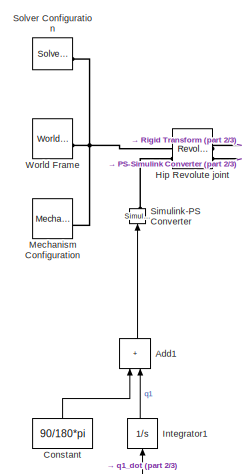
[diagram: root canvas - part 1/3, top left region]
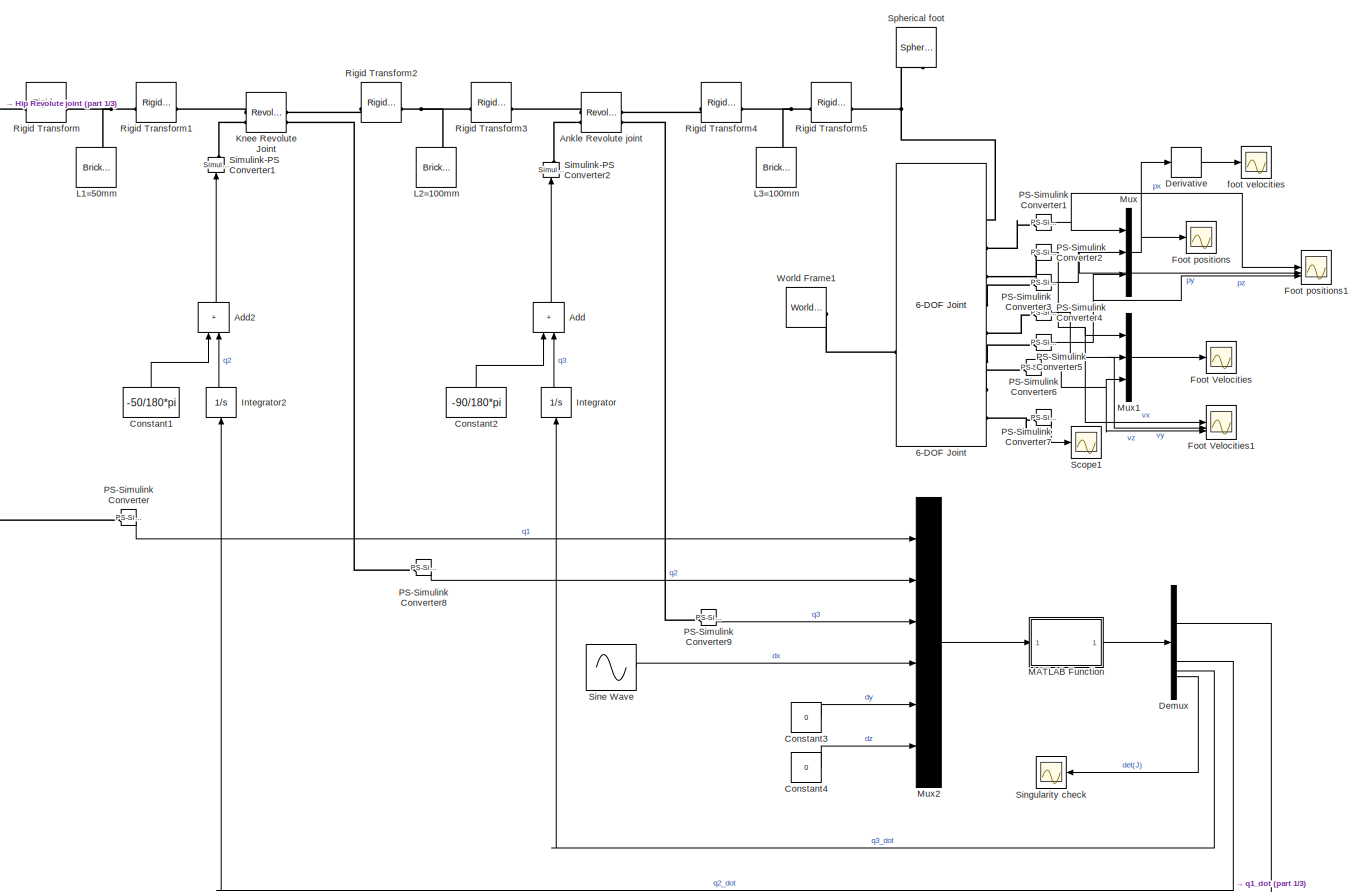
[diagram: root canvas - part 2/3, most of the canvas]
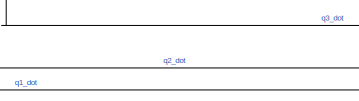
[diagram: root canvas - part 3/3, bottom center region]
MODEL slx_8868ec601e04
KIND model
CONFIG AbsTol = 1e-3
CONFIG EnableMultiTasking = on
CONFIG FixedStep = auto
CONFIG MaxStep = auto
CONFIG MinStep = auto
CONFIG RelTol = 1e-3
CONFIG SampleTimeConstraint = Unconstrained
CONFIG SolverName = VariableStepAuto
CONFIG StartTime = 0.0
CONFIG StopTime = 20.0
BLOCK [Reference] 6-DOF Joint  REF=sm_lib/Joints/6-DOF Joint
  SourceBlock = sm_lib/Joints/6-DOF Joint
  SourceType = 6-DOF Joint
BLOCK [Sum] Add
  IconShape = rectangular
  NameLocation = right
BLOCK [Sum] Add1
  IconShape = rectangular
  NameLocation = right
BLOCK [Sum] Add2
  IconShape = rectangular
  NameLocation = right
BLOCK [Reference] Ankle Revolute joint  REF=sm_lib/Joints/Revolute Joint
  NameLocation = top
  SourceBlock = sm_lib/Joints/Revolute Joint
  SourceType = Revolute Joint
BLOCK [Constant] Constant
  NameLocation = right
  Value = 90/180*pi
BLOCK [Constant] Constant1
  NameLocation = right
  Value = -50/180*pi
BLOCK [Constant] Constant2
  NameLocation = right
  Value = -90/180*pi
BLOCK [Constant] Constant3
  Value = 0
BLOCK [Constant] Constant4
  Value = 0
BLOCK [Demux] Demux
BLOCK [Derivative] Derivative
BLOCK [Scope] Foot Velocities
  Floating = off
  NameLocation = top
  NumInputPorts = 1
  ScopeSpecificationString = Simulink.scopes.TimeScopeBlockCfg('CurrentConfiguration', extmgr.ConfigurationSet(extmgr.Configuration('Core','General UI',true,'FigureColor',[1 1 1]),extmgr.Configuration('Core','Source UI',true),extmgr.Configuration('Sources','WiredSimulink',true,'DataLoggingVariableName','ScopeData3'),extmgr.Configuration('Visuals','Time Domain',true,'SerializedDisplays',{struct('MinYLimReal','-0.0875','MaxYLim...<+1826ch>
BLOCK [Scope] Foot Velocities1
  Floating = off
  NameLocation = top
  NumInputPorts = 3
  ScopeSpecificationString = Simulink.scopes.TimeScopeBlockCfg('CurrentConfiguration', extmgr.ConfigurationSet(extmgr.Configuration('Core','General UI',true,'FigureColor',[1 1 1]),extmgr.Configuration('Core','Source UI',true),extmgr.Configuration('Sources','WiredSimulink',true,'DataLoggingVariableName','ScopeData3'),extmgr.Configuration('Visuals','Time Domain',true,'SerializedDisplays',{struct('MinYLimReal','-0.0875','MaxYLim...<+3353ch>
BLOCK [Scope] Foot positions
  Floating = off
  NameLocation = top
  NumInputPorts = 1
  ScopeSpecificationString = Simulink.scopes.TimeScopeBlockCfg('CurrentConfiguration', extmgr.ConfigurationSet(extmgr.Configuration('Core','General UI',true),extmgr.Configuration('Core','Source UI',true),extmgr.Configuration('Sources','WiredSimulink',true,'DataLoggingVariableName','ScopeData2'),extmgr.Configuration('Visuals','Time Domain',true,'SerializedDisplays',{struct('MinYLimReal','-0.17603','MaxYLimReal','0.17546','YLab...<+1598ch>
BLOCK [Scope] Foot positions1
  Floating = off
  NameLocation = top
  NumInputPorts = 3
  ScopeSpecificationString = Simulink.scopes.TimeScopeBlockCfg('CurrentConfiguration', extmgr.ConfigurationSet(extmgr.Configuration('Core','General UI',true,'FigureColor',[1 1 1]),extmgr.Configuration('Core','Source UI',true),extmgr.Configuration('Sources','WiredSimulink',true,'DataLoggingVariableName','ScopeData2'),extmgr.Configuration('Visuals','Time Domain',true,'SerializedDisplays',{struct('MinYLimReal','-0.01754','MaxYLi...<+3222ch>
BLOCK [Reference] Hip Revolute joint  REF=sm_lib/Joints/Revolute Joint
  NameLocation = top
  SourceBlock = sm_lib/Joints/Revolute Joint
  SourceType = Revolute Joint
BLOCK [Integrator] Integrator
  NameLocation = right
BLOCK [Integrator] Integrator1
  NameLocation = right
BLOCK [Integrator] Integrator2
  NameLocation = right
BLOCK [Reference] Knee Revolute Joint  REF=sm_lib/Joints/Revolute Joint
  NameLocation = top
  SourceBlock = sm_lib/Joints/Revolute Joint
  SourceType = Revolute Joint
BLOCK [Reference] L1=50mm  REF=sm_lib/Body Elements/Brick Solid
  SourceBlock = sm_lib/Body Elements/Brick Solid
  SourceType = Brick Solid
BLOCK [Reference] L2=100mm  REF=sm_lib/Body Elements/Brick Solid
  SourceBlock = sm_lib/Body Elements/Brick Solid
  SourceType = Brick Solid
BLOCK [Reference] L3=100mm  REF=sm_lib/Body Elements/Brick Solid
  SourceBlock = sm_lib/Body Elements/Brick Solid
  SourceType = Brick Solid
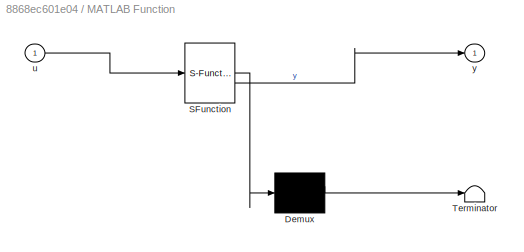
BLOCK [SubSystem] MATLAB Function
  ErrorFcn = Stateflow.Translate.translate
  PermitHierarchicalResolution = ExplicitOnly
  SFBlockType = MATLAB Function
  TreatAsAtomicUnit = on
BLOCK [Demux] MATLAB Function/ Demux 
  Outputs = 1
BLOCK [S-Function] MATLAB Function/ SFunction 
  EnableBusSupport = on
  FunctionName = sf_sfun
  PortCounts = [1 2]
  SFcnIsStateOwnerBlock = off
  SFunctionDeploymentMode = off
  Tag = Stateflow S-Function 2
BLOCK [Terminator] MATLAB Function/ Terminator 
BLOCK [Inport] MATLAB Function/u
BLOCK [Outport] MATLAB Function/y
BLOCK [Reference] Mechanism Configuration  REF=sm_lib/Utilities/Mechanism
Configuration
  SourceBlock = sm_lib/Utilities/Mechanism\nConfiguration
  SourceType = Mechanism\nConfiguration
BLOCK [Mux] Mux
  DisplayOption = bar
  Inputs = 3
BLOCK [Mux] Mux1
  DisplayOption = bar
  Inputs = 3
BLOCK [Mux] Mux2
  DisplayOption = bar
  Inputs = 6
BLOCK [Reference] PS-Simulink Converter  REF=nesl_utility/PS-Simulink
Converter
  SourceBlock = nesl_utility/PS-Simulink\nConverter
  SourceType = PS-Simulink\nConverter
BLOCK [Reference] PS-Simulink Converter1  REF=nesl_utility/PS-Simulink
Converter
  SourceBlock = nesl_utility/PS-Simulink\nConverter
  SourceType = PS-Simulink\nConverter
BLOCK [Reference] PS-Simulink Converter2  REF=nesl_utility/PS-Simulink
Converter
  SourceBlock = nesl_utility/PS-Simulink\nConverter
  SourceType = PS-Simulink\nConverter
BLOCK [Reference] PS-Simulink Converter3  REF=nesl_utility/PS-Simulink
Converter
  SourceBlock = nesl_utility/PS-Simulink\nConverter
  SourceType = PS-Simulink\nConverter
BLOCK [Reference] PS-Simulink Converter4  REF=nesl_utility/PS-Simulink
Converter
  SourceBlock = nesl_utility/PS-Simulink\nConverter
  SourceType = PS-Simulink\nConverter
BLOCK [Reference] PS-Simulink Converter5  REF=nesl_utility/PS-Simulink
Converter
  SourceBlock = nesl_utility/PS-Simulink\nConverter
  SourceType = PS-Simulink\nConverter
BLOCK [Reference] PS-Simulink Converter6  REF=nesl_utility/PS-Simulink
Converter
  SourceBlock = nesl_utility/PS-Simulink\nConverter
  SourceType = PS-Simulink\nConverter
BLOCK [Reference] PS-Simulink Converter7  REF=nesl_utility/PS-Simulink
Converter
  SourceBlock = nesl_utility/PS-Simulink\nConverter
  SourceType = PS-Simulink\nConverter
BLOCK [Reference] PS-Simulink Converter8  REF=nesl_utility/PS-Simulink
Converter
  SourceBlock = nesl_utility/PS-Simulink\nConverter
  SourceType = PS-Simulink\nConverter
BLOCK [Reference] PS-Simulink Converter9  REF=nesl_utility/PS-Simulink
Converter
  SourceBlock = nesl_utility/PS-Simulink\nConverter
  SourceType = PS-Simulink\nConverter
BLOCK [Reference] Rigid Transform  REF=sm_lib/Frames and
Transforms/Rigid
Transform
  SourceBlock = sm_lib/Frames and\nTransforms/Rigid\nTransform
  SourceType = Rigid\nTransform
BLOCK [Reference] Rigid Transform1  REF=sm_lib/Frames and
Transforms/Rigid
Transform
  SourceBlock = sm_lib/Frames and\nTransforms/Rigid\nTransform
  SourceType = Rigid\nTransform
BLOCK [Reference] Rigid Transform2  REF=sm_lib/Frames and
Transforms/Rigid
Transform
  SourceBlock = sm_lib/Frames and\nTransforms/Rigid\nTransform
  SourceType = Rigid\nTransform
BLOCK [Reference] Rigid Transform3  REF=sm_lib/Frames and
Transforms/Rigid
Transform
  SourceBlock = sm_lib/Frames and\nTransforms/Rigid\nTransform
  SourceType = Rigid\nTransform
BLOCK [Reference] Rigid Transform4  REF=sm_lib/Frames and
Transforms/Rigid
Transform
  SourceBlock = sm_lib/Frames and\nTransforms/Rigid\nTransform
  SourceType = Rigid\nTransform
BLOCK [Reference] Rigid Transform5  REF=sm_lib/Frames and
Transforms/Rigid
Transform
  SourceBlock = sm_lib/Frames and\nTransforms/Rigid\nTransform
  SourceType = Rigid\nTransform
BLOCK [Scope] Scope1
  Floating = off
  NumInputPorts = 1
  ScopeSpecificationString = Simulink.scopes.TimeScopeBlockCfg('CurrentConfiguration', extmgr.ConfigurationSet(extmgr.Configuration('Core','General UI',true),extmgr.Configuration('Core','Source UI',true),extmgr.Configuration('Sources','WiredSimulink',true,'DataLoggingVariableName','ScopeData1'),extmgr.Configuration('Visuals','Time Domain',true,'SerializedDisplays',{struct('MinYLimReal','-0.67695','MaxYLimReal','0.86089','YLab...<+1581ch>
BLOCK [Reference] Simulink-PS Converter  REF=nesl_utility/Simulink-PS
Converter
  NameLocation = right
  SourceBlock = nesl_utility/Simulink-PS\nConverter
  SourceType = Simulink-PS\nConverter
BLOCK [Reference] Simulink-PS Converter1  REF=nesl_utility/Simulink-PS
Converter
  NameLocation = right
  SourceBlock = nesl_utility/Simulink-PS\nConverter
  SourceType = Simulink-PS\nConverter
BLOCK [Reference] Simulink-PS Converter2  REF=nesl_utility/Simulink-PS
Converter
  NameLocation = right
  SourceBlock = nesl_utility/Simulink-PS\nConverter
  SourceType = Simulink-PS\nConverter
BLOCK [Sin] Sine Wave
  Amplitude = 70
  SampleTime = 0
BLOCK [Scope] Singularity check
  Floating = off
  NumInputPorts = 1
  ScopeSpecificationString = Simulink.scopes.TimeScopeBlockCfg('CurrentConfiguration', extmgr.ConfigurationSet(extmgr.Configuration('Core','General UI',true,'FigureColor',[1 1 1]),extmgr.Configuration('Core','Source UI',true),extmgr.Configuration('Sources','WiredSimulink',true,'DataLoggingVariableName','ScopeData1'),extmgr.Configuration('Visuals','Time Domain',true,'SerializedDisplays',{struct('MinYLimReal','247997.3061','Max...<+1550ch>
BLOCK [Reference] Solver Configuration  REF=nesl_utility/Solver
Configuration
  SourceBlock = nesl_utility/Solver\nConfiguration
  SourceType = Solver\nConfiguration
BLOCK [Reference] Spherical foot  REF=sm_lib/Body Elements/Spherical Solid
  NameLocation = top
  SourceBlock = sm_lib/Body Elements/Spherical Solid
  SourceType = Spherical Solid
BLOCK [Reference] World Frame  REF=sm_lib/Frames and
Transforms/World Frame
  SourceBlock = sm_lib/Frames and\nTransforms/World Frame
  SourceType = World Frame
BLOCK [Reference] World Frame1  REF=sm_lib/Frames and
Transforms/World Frame
  SourceBlock = sm_lib/Frames and\nTransforms/World Frame
  SourceType = World Frame
BLOCK [Scope] foot velocities
  Floating = off
  NameLocation = top
  NumInputPorts = 1
  ScopeSpecificationString = Simulink.scopes.TimeScopeBlockCfg('CurrentConfiguration', extmgr.ConfigurationSet(extmgr.Configuration('Core','General UI',true),extmgr.Configuration('Core','Source UI',true),extmgr.Configuration('Sources','WiredSimulink',true),extmgr.Configuration('Visuals','Time Domain',true,'SerializedDisplays',{struct('MinYLimReal','-0.08747','MaxYLimReal','0.08754','YLabelReal','','MinYLimMag','0.00000','MaxY...<+1478ch>
LINE Add1:1 -> Simulink-PS Converter:1
LINE Add2:1 -> Simulink-PS Converter1:1
LINE Add:1 -> Simulink-PS Converter2:1
LINE Constant1:1 -> Add2:1
LINE Constant2:1 -> Add:1
LINE Constant3:1 -> Mux2:5
LINE Constant4:1 -> Mux2:6
LINE Constant:1 -> Add1:1
LINE Demux:1 -> Integrator1:1
LINE Demux:2 -> Integrator2:1
LINE Demux:3 -> Integrator:1
LINE Demux:4 -> Singularity check:1
LINE Derivative:1 -> foot velocities:1
LINE Integrator1:1 -> Add1:2
LINE Integrator2:1 -> Add2:2
LINE Integrator:1 -> Add:2
LINE MATLAB Function:1 -> Demux:1
LINE Mux1:1 -> Foot Velocities:1
LINE Mux2:1 -> MATLAB Function:1
NET Mux:1 -> Derivative:1, Foot positions:1
NET PS-Simulink Converter1:1 -> Foot positions1:1, Mux:1
NET PS-Simulink Converter2:1 -> Foot Velocities1:1, Mux1:1
NET PS-Simulink Converter3:1 -> Foot positions1:2, Mux:2
NET PS-Simulink Converter4:1 -> Foot Velocities1:2, Mux1:2
NET PS-Simulink Converter5:1 -> Foot positions1:3, Mux:3
NET PS-Simulink Converter6:1 -> Foot Velocities1:3, Mux1:3
LINE PS-Simulink Converter7:1 -> Scope1:1
LINE PS-Simulink Converter8:1 -> Mux2:2
LINE PS-Simulink Converter9:1 -> Mux2:3
LINE PS-Simulink Converter:1 -> Mux2:1
LINE Sine Wave:1 -> Mux2:4
PLINE 6-DOF Joint:LConn1 -- World Frame1:RConn1
PNET net1: 6-DOF Joint:RConn1 -- Rigid Transform5:RConn1 -- Spherical foot:RConn1
PLINE 6-DOF Joint:RConn2 -- PS-Simulink Converter1:LConn1
PLINE 6-DOF Joint:RConn3 -- PS-Simulink Converter2:LConn1
PLINE 6-DOF Joint:RConn4 -- PS-Simulink Converter3:LConn1
PLINE 6-DOF Joint:RConn5 -- PS-Simulink Converter4:LConn1
PLINE 6-DOF Joint:RConn6 -- PS-Simulink Converter5:LConn1
PLINE 6-DOF Joint:RConn7 -- PS-Simulink Converter6:LConn1
PLINE 6-DOF Joint:RConn8 -- PS-Simulink Converter7:LConn1
PLINE Ankle Revolute joint:LConn1 -- Rigid Transform3:RConn1
PLINE Ankle Revolute joint:LConn2 -- Simulink-PS Converter2:RConn1
PLINE Ankle Revolute joint:RConn1 -- Rigid Transform4:LConn1
PLINE Ankle Revolute joint:RConn2 -- PS-Simulink Converter9:LConn1
PNET net2: Hip Revolute joint:LConn1 -- Mechanism Configuration:RConn1 -- Solver Configuration:RConn1 -- World Frame:RConn1
PLINE Hip Revolute joint:LConn2 -- Simulink-PS Converter:RConn1
PLINE Hip Revolute joint:RConn1 -- Rigid Transform:LConn1
PLINE Hip Revolute joint:RConn2 -- PS-Simulink Converter:LConn1
PLINE Knee Revolute Joint:LConn1 -- Rigid Transform1:RConn1
PLINE Knee Revolute Joint:LConn2 -- Simulink-PS Converter1:RConn1
PLINE Knee Revolute Joint:RConn1 -- Rigid Transform2:LConn1
PLINE Knee Revolute Joint:RConn2 -- PS-Simulink Converter8:LConn1
PNET net3: L1=50mm:RConn1 -- Rigid Transform1:LConn1 -- Rigid Transform:RConn1
PNET net4: L2=100mm:RConn1 -- Rigid Transform2:RConn1 -- Rigid Transform3:LConn1
PNET net5: L3=100mm:RConn1 -- Rigid Transform4:RConn1 -- Rigid Transform5:LConn1
note: NET lines group one-source signal fan-out (src -> all destinations, sorted); 1:1 wires keep LINE; PNET lines group multi-terminal physical nets as a canonical sorted terminal list (undirected conserving connections); 2-terminal nets keep the pairwise PLINE form
CHART MATLAB Function states=1 transitions=1
  STATE_LABEL 'eML_blk_kernel()'
  STATE_LABEL 'SCRIPT:\nfunction y = jacob_inv(u)\n\nL1=50;\nL2=100;\nL3=100;\n\nq1=u(1);\nq2=u(2);\nq3=u(3);\ndx=u(4);\ndy=u(5);\ndz=u(6);\n\njacobian=[-L1*sin(q1)-L2*cos(q2)*sin(q1)-L3*cos(q2+q3)*sin(q1) , -L2*cos(q1)*sin(q2)-L3*cos(q1)*sin(q2+q3) , -L3*cos(q1)*sin(q2+q3);\n          L1*cos(q1)+L2*cos(q1)*cos(q2)+L3*cos(q1)*cos(q2+q3) , -L2*sin(q1)*sin(q2)-L3*sin(q1)*sin(q2+q3) , -L3*sin(q1)*sin(q2+q3);\n                     ...<+241ch>'
CHART  states=0 transitions=0
